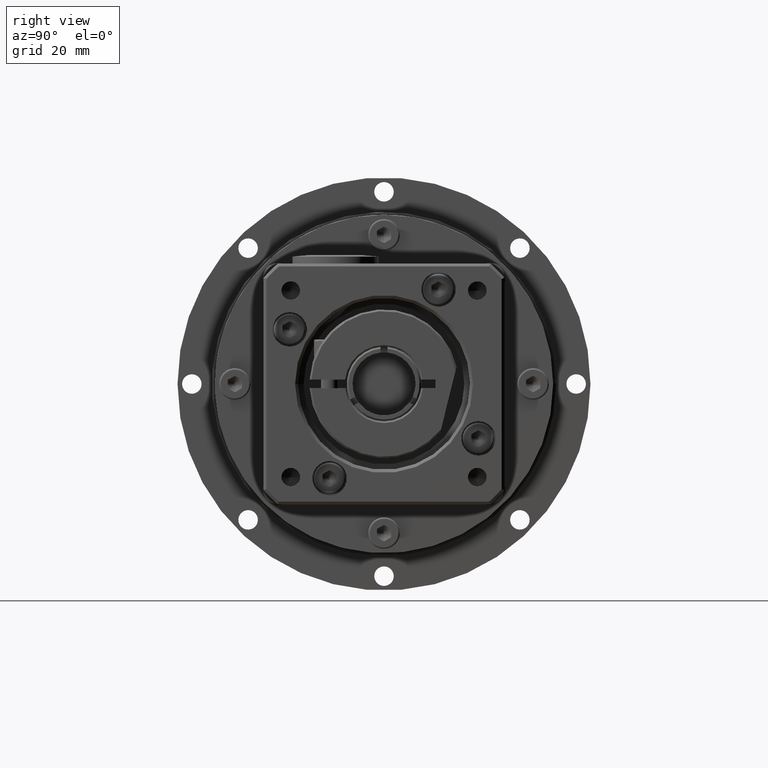
[diagram: clean part render]
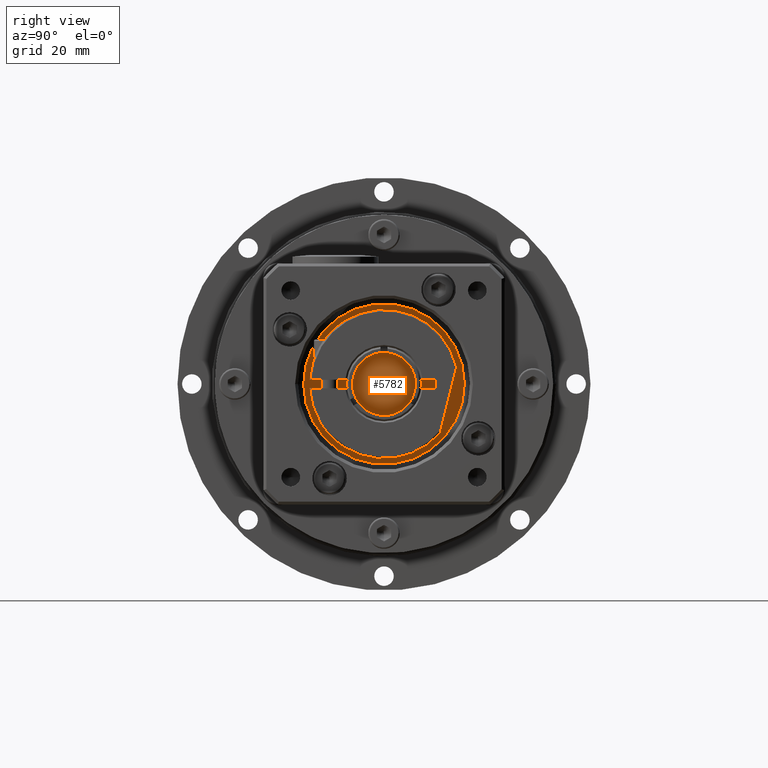
[diagram: same view with one face highlighted and labeled with its STEP entity id]
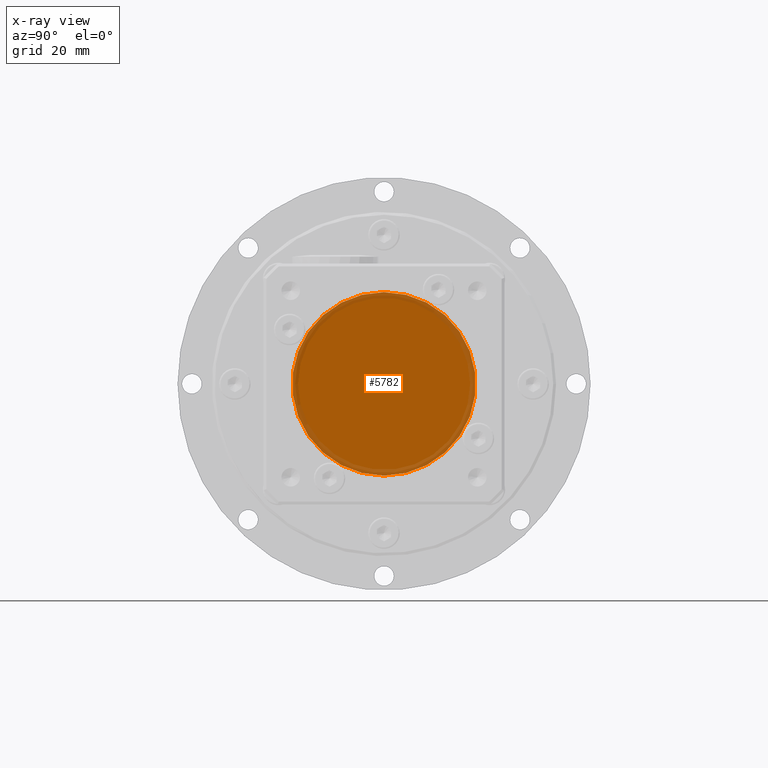
[diagram: x-ray of the same camera — body ghosted, the highlighted face saturated]
A machine part, right view. The second image highlights one B-rep face of the part: STEP entity #5782.
The next image is the same camera in x-ray: the body ghosted, the highlighted face saturated — about 12% of this face is hidden behind the body in this view.
In plain terms, the highlighted planar face has unit normal (1, -0, 0).
Its self-contained STEP definition (entity closure, byte-faithful):
#864=PLANE('',#6414);
#1426=FACE_OUTER_BOUND('',#1990,.T.);
#1990=EDGE_LOOP('',(#4498));
#2454=CIRCLE('',#6415,16.);
#2860=VERTEX_POINT('',#9458);
#3460=EDGE_CURVE('',#2860,#2860,#2454,.T.);
#4498=ORIENTED_EDGE('',*,*,#3460,.F.);
#5782=ADVANCED_FACE('',(#1426),#864,.T.);
#6414=AXIS2_PLACEMENT_3D('',#9457,#7667,#7668);
#6415=AXIS2_PLACEMENT_3D('',#9459,#7669,#7670);
#7667=DIRECTION('center_axis',(1.,-6.5903138305221E-16,3.93684906774911E-15));
#7668=DIRECTION('ref_axis',(3.90798504668055E-15,-4.33431068813661E-14,
-1.));
#7669=DIRECTION('center_axis',(-1.,6.5903138305221E-16,-3.93684906774911E-15));
#7670=DIRECTION('ref_axis',(-3.93684906774908E-15,4.3549699103267E-14,1.));
#9457=CARTESIAN_POINT('Origin',(26.2548368965332,-49.1307567443875,52.8867726493692));
#9458=CARTESIAN_POINT('',(26.2548368965332,-49.1307567443882,36.8867726493692));
#9459=CARTESIAN_POINT('Origin',(26.2548368965332,-49.1307567443875,52.8867726493692));